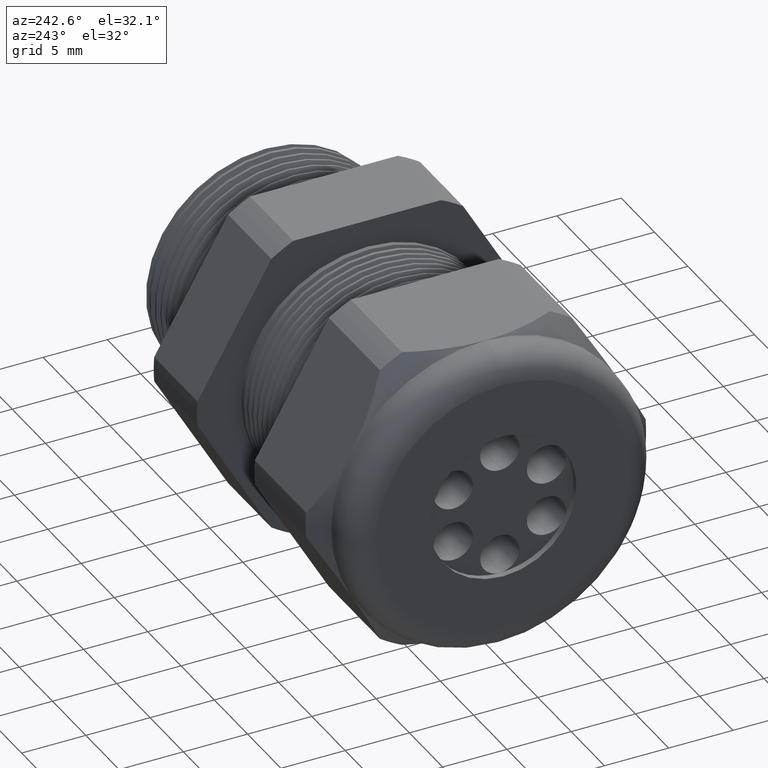
[diagram: clean part render]
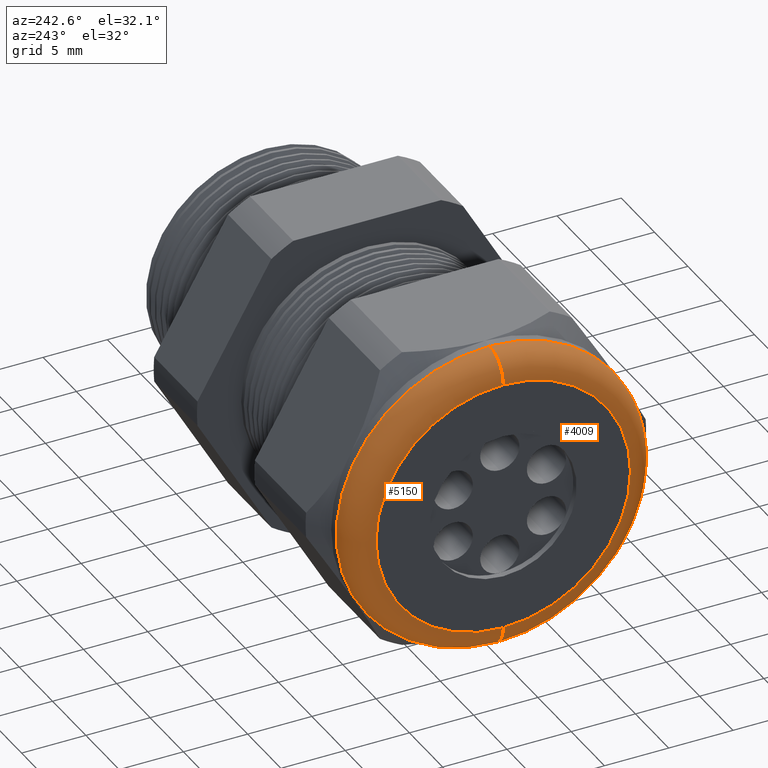
[diagram: same view with one multi-face feature highlighted, each face labeled with its STEP entity id]
A machine part, auxiliary view. The highlighted faces form ONE feature: a constant-radius fillet chain: 2 tangent blend faces with common blend radius 2.032 mm. The faces share edges in the B-rep.
Their STEP definitions:
[1] entity #5150 (Torus):
#5 = EDGE_CURVE ( 'NONE', #5144, #249, #4384, .T. ) ;
#16 = EDGE_CURVE ( 'NONE', #5145, #245, #4425, .T. ) ;
#25 = ORIENTED_EDGE ( 'NONE', *, *, #16, .F. ) ;
#242 = EDGE_CURVE ( 'NONE', #245, #249, #4810, .T. ) ;
#244 = ORIENTED_EDGE ( 'NONE', *, *, #242, .F. ) ;
#245 = VERTEX_POINT ( 'NONE', #4805 ) ;
#249 = VERTEX_POINT ( 'NONE', #4804 ) ;
#3038 = DIRECTION ( 'NONE',  ( 0.0000000000000000000, 0.0000000000000000000, 1.000000000000000000 ) ) ;
#3039 = DIRECTION ( 'NONE',  ( -1.000000000000000000, 0.0000000000000000000, 0.0000000000000000000 ) ) ;
#3040 = AXIS2_PLACEMENT_3D ( 'NONE', #3042, #3039, #3038 ) ;
#3041 = TOROIDAL_SURFACE ( 'NONE', #3040, 0.3899999999999999600, 0.08000000000000000200 ) ;
#3042 = CARTESIAN_POINT ( 'NONE',  ( -1.290000000000000300, 0.0000000000000000000, 0.0000000000000000000 ) ) ;
#3043 = DIRECTION ( 'NONE',  ( 0.0000000000000000000, 0.0000000000000000000, 1.000000000000000000 ) ) ;
#3044 = DIRECTION ( 'NONE',  ( 1.000000000000000000, 0.0000000000000000000, 0.0000000000000000000 ) ) ;
#3045 = CARTESIAN_POINT ( 'NONE',  ( -1.290000000000000300, 0.0000000000000000000, 0.0000000000000000000 ) ) ;
#3046 = AXIS2_PLACEMENT_3D ( 'NONE', #3045, #3044, #3043 ) ;
#3047 = CIRCLE ( 'NONE', #3046, 0.4699999999999999200 ) ;
#3048 = FACE_OUTER_BOUND ( 'NONE', #5146, .T. ) ;
#3049 = CARTESIAN_POINT ( 'NONE',  ( -1.290000000000000300, 5.755839955992558400E-017, 0.4699999999999999200 ) ) ;
#3050 = CARTESIAN_POINT ( 'NONE',  ( -1.290000000000000300, 0.0000000000000000000, -0.4699999999999999200 ) ) ;
#4382 = DIRECTION ( 'NONE',  ( 0.0000000000000000000, 1.000000000000000000, 1.224646799147353200E-016 ) ) ;
#4383 = AXIS2_PLACEMENT_3D ( 'NONE', #4390, #4382, #4448 ) ;
#4384 = CIRCLE ( 'NONE', #4383, 0.07999999999999996000 ) ;
#4390 = CARTESIAN_POINT ( 'NONE',  ( -1.290000000000000300, 4.776122516674676800E-017, -0.3899999999999999600 ) ) ;
#4422 = DIRECTION ( 'NONE',  ( 0.0000000000000000000, 0.0000000000000000000, -1.000000000000000000 ) ) ;
#4423 = DIRECTION ( 'NONE',  ( 0.0000000000000000000, -1.000000000000000000, 0.0000000000000000000 ) ) ;
#4424 = AXIS2_PLACEMENT_3D ( 'NONE', #4430, #4423, #4422 ) ;
#4425 = CIRCLE ( 'NONE', #4424, 0.07999999999999996000 ) ;
#4430 = CARTESIAN_POINT ( 'NONE',  ( -1.290000000000000300, 0.0000000000000000000, 0.3899999999999999600 ) ) ;
#4448 = DIRECTION ( 'NONE',  ( 0.0000000000000000000, -1.224646799147353900E-016, 1.000000000000000000 ) ) ;
#4804 = CARTESIAN_POINT ( 'NONE',  ( -1.370000000000000100, 5.265981236333617600E-017, -0.3899999999999999600 ) ) ;
#4805 = CARTESIAN_POINT ( 'NONE',  ( -1.370000000000000100, 0.0000000000000000000, 0.3899999999999999600 ) ) ;
#4806 = DIRECTION ( 'NONE',  ( 0.0000000000000000000, 0.0000000000000000000, 1.000000000000000000 ) ) ;
#4807 = DIRECTION ( 'NONE',  ( -1.000000000000000000, 0.0000000000000000000, 0.0000000000000000000 ) ) ;
#4808 = CARTESIAN_POINT ( 'NONE',  ( -1.370000000000000100, 0.0000000000000000000, 0.0000000000000000000 ) ) ;
#4809 = AXIS2_PLACEMENT_3D ( 'NONE', #4808, #4807, #4806 ) ;
#4810 = CIRCLE ( 'NONE', #4809, 0.3899999999999999600 ) ;
#5144 = VERTEX_POINT ( 'NONE', #3050 ) ;
#5145 = VERTEX_POINT ( 'NONE', #3049 ) ;
#5146 = EDGE_LOOP ( 'NONE', ( #5149, #5147, #244, #25 ) ) ;
#5147 = ORIENTED_EDGE ( 'NONE', *, *, #5, .T. ) ;
#5148 = EDGE_CURVE ( 'NONE', #5144, #5145, #3047, .T. ) ;
#5149 = ORIENTED_EDGE ( 'NONE', *, *, #5148, .F. ) ;
#5150 = ADVANCED_FACE ( 'NONE', ( #3048 ), #3041, .T. ) ;
[2] entity #4009 (Torus):
#5 = EDGE_CURVE ( 'NONE', #5144, #249, #4384, .T. ) ;
#16 = EDGE_CURVE ( 'NONE', #5145, #245, #4425, .T. ) ;
#245 = VERTEX_POINT ( 'NONE', #4805 ) ;
#249 = VERTEX_POINT ( 'NONE', #4804 ) ;
#1703 = DIRECTION ( 'NONE',  ( 0.0000000000000000000, 0.0000000000000000000, 1.000000000000000000 ) ) ;
#1704 = DIRECTION ( 'NONE',  ( -1.000000000000000000, 0.0000000000000000000, 0.0000000000000000000 ) ) ;
#1705 = CARTESIAN_POINT ( 'NONE',  ( -1.370000000000000100, 0.0000000000000000000, 0.0000000000000000000 ) ) ;
#1706 = AXIS2_PLACEMENT_3D ( 'NONE', #1705, #1704, #1703 ) ;
#1707 = CIRCLE ( 'NONE', #1706, 0.3899999999999999600 ) ;
#1772 = DIRECTION ( 'NONE',  ( 1.000000000000000000, 0.0000000000000000000, 0.0000000000000000000 ) ) ;
#1773 = CARTESIAN_POINT ( 'NONE',  ( -1.290000000000000300, 0.0000000000000000000, 0.0000000000000000000 ) ) ;
#1774 = AXIS2_PLACEMENT_3D ( 'NONE', #1773, #1772, #1832 ) ;
#1779 = CIRCLE ( 'NONE', #1774, 0.4699999999999999200 ) ;
#1832 = DIRECTION ( 'NONE',  ( 0.0000000000000000000, 0.0000000000000000000, 1.000000000000000000 ) ) ;
#2024 = DIRECTION ( 'NONE',  ( 0.0000000000000000000, 0.0000000000000000000, 1.000000000000000000 ) ) ;
#2025 = DIRECTION ( 'NONE',  ( -1.000000000000000000, 0.0000000000000000000, 0.0000000000000000000 ) ) ;
#2026 = CARTESIAN_POINT ( 'NONE',  ( -1.290000000000000300, 0.0000000000000000000, 0.0000000000000000000 ) ) ;
#2027 = AXIS2_PLACEMENT_3D ( 'NONE', #2026, #2025, #2024 ) ;
#2028 = TOROIDAL_SURFACE ( 'NONE', #2027, 0.3899999999999999600, 0.08000000000000000200 ) ;
#2029 = FACE_OUTER_BOUND ( 'NONE', #4030, .T. ) ;
#3049 = CARTESIAN_POINT ( 'NONE',  ( -1.290000000000000300, 5.755839955992558400E-017, 0.4699999999999999200 ) ) ;
#3050 = CARTESIAN_POINT ( 'NONE',  ( -1.290000000000000300, 0.0000000000000000000, -0.4699999999999999200 ) ) ;
#3805 = EDGE_CURVE ( 'NONE', #249, #245, #1707, .T. ) ;
#3876 = EDGE_CURVE ( 'NONE', #5145, #5144, #1779, .T. ) ;
#4009 = ADVANCED_FACE ( 'NONE', ( #2029 ), #2028, .T. ) ;
#4010 = ORIENTED_EDGE ( 'NONE', *, *, #5, .F. ) ;
#4011 = ORIENTED_EDGE ( 'NONE', *, *, #3876, .F. ) ;
#4012 = ORIENTED_EDGE ( 'NONE', *, *, #16, .T. ) ;
#4013 = ORIENTED_EDGE ( 'NONE', *, *, #3805, .F. ) ;
#4030 = EDGE_LOOP ( 'NONE', ( #4010, #4011, #4012, #4013 ) ) ;
#4382 = DIRECTION ( 'NONE',  ( 0.0000000000000000000, 1.000000000000000000, 1.224646799147353200E-016 ) ) ;
#4383 = AXIS2_PLACEMENT_3D ( 'NONE', #4390, #4382, #4448 ) ;
#4384 = CIRCLE ( 'NONE', #4383, 0.07999999999999996000 ) ;
#4390 = CARTESIAN_POINT ( 'NONE',  ( -1.290000000000000300, 4.776122516674676800E-017, -0.3899999999999999600 ) ) ;
#4422 = DIRECTION ( 'NONE',  ( 0.0000000000000000000, 0.0000000000000000000, -1.000000000000000000 ) ) ;
#4423 = DIRECTION ( 'NONE',  ( 0.0000000000000000000, -1.000000000000000000, 0.0000000000000000000 ) ) ;
#4424 = AXIS2_PLACEMENT_3D ( 'NONE', #4430, #4423, #4422 ) ;
#4425 = CIRCLE ( 'NONE', #4424, 0.07999999999999996000 ) ;
#4430 = CARTESIAN_POINT ( 'NONE',  ( -1.290000000000000300, 0.0000000000000000000, 0.3899999999999999600 ) ) ;
#4448 = DIRECTION ( 'NONE',  ( 0.0000000000000000000, -1.224646799147353900E-016, 1.000000000000000000 ) ) ;
#4804 = CARTESIAN_POINT ( 'NONE',  ( -1.370000000000000100, 5.265981236333617600E-017, -0.3899999999999999600 ) ) ;
#4805 = CARTESIAN_POINT ( 'NONE',  ( -1.370000000000000100, 0.0000000000000000000, 0.3899999999999999600 ) ) ;
#5144 = VERTEX_POINT ( 'NONE', #3050 ) ;
#5145 = VERTEX_POINT ( 'NONE', #3049 ) ;